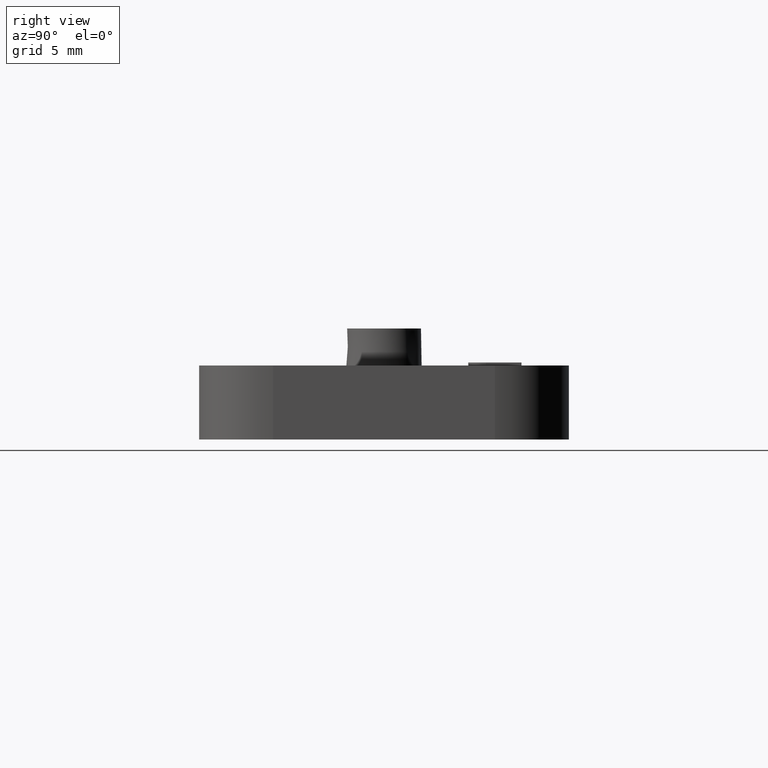
[diagram: clean part render]
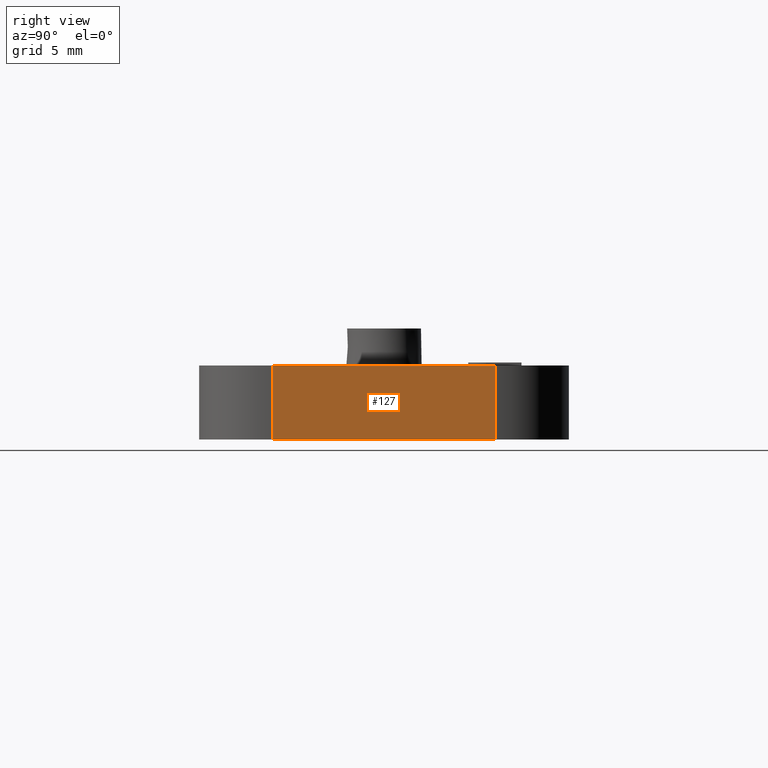
[diagram: same view with one face highlighted and labeled with its STEP entity id]
A machine part, right view. The second image highlights one B-rep face of the part: STEP entity #127.
In plain terms, the highlighted planar face has unit normal (1, -0, 0).
Its self-contained STEP definition (entity closure, byte-faithful):
#127 = ADVANCED_FACE( '', ( #452 ), #453, .T. );
#452 = FACE_OUTER_BOUND( '', #962, .T. );
#453 = PLANE( '', #963 );
#962 = EDGE_LOOP( '', ( #1935, #1936, #1937, #1938 ) );
#963 = AXIS2_PLACEMENT_3D( '', #1939, #1940, #1941 );
#1935 = ORIENTED_EDGE( '', *, *, #3611, .T. );
#1936 = ORIENTED_EDGE( '', *, *, #3275, .F. );
#1937 = ORIENTED_EDGE( '', *, *, #3612, .F. );
#1938 = ORIENTED_EDGE( '', *, *, #3242, .T. );
#1939 = CARTESIAN_POINT( '', ( 20.9999999999999, 10.4999999999999, 2.99999999999999 ) );
#1940 = DIRECTION( '', ( 1.00000000000000, -4.13029399042099E-017, 2.52899213191196E-033 ) );
#1941 = DIRECTION( '', ( 4.13029399042099E-017, 1.00000000000000, -6.12303176911189E-017 ) );
#3242 = EDGE_CURVE( '', #3853, #3851, #3854, .T. );
#3275 = EDGE_CURVE( '', #3917, #3919, #3920, .T. );
#3611 = EDGE_CURVE( '', #3851, #3919, #4560, .T. );
#3612 = EDGE_CURVE( '', #3853, #3917, #4561, .T. );
#3851 = VERTEX_POINT( '', #4852 );
#3853 = VERTEX_POINT( '', #4854 );
#3854 = LINE( '', #4855, #4856 );
#3917 = VERTEX_POINT( '', #4947 );
#3919 = VERTEX_POINT( '', #4949 );
#3920 = LINE( '', #4950, #4951 );
#4560 = LINE( '', #5920, #5921 );
#4561 = LINE( '', #5922, #5923 );
#4852 = CARTESIAN_POINT( '', ( 21.0000000000000, -7.50000000000002, 4.99999999999998 ) );
#4854 = CARTESIAN_POINT( '', ( 21.0000000000000, 7.50000000000001, 4.99999999999998 ) );
#4855 = CARTESIAN_POINT( '', ( 21.0000000000000, -8.36746579142844E-015, 4.99999999999998 ) );
#4856 = VECTOR( '', #6396, 1000.00000000000 );
#4947 = CARTESIAN_POINT( '', ( 21.0000000000000, 7.49999999999999, -2.82148029983123E-014 ) );
#4949 = CARTESIAN_POINT( '', ( 21.0000000000000, -7.50000000000002, -2.72963482329455E-014 ) );
#4950 = CARTESIAN_POINT( '', ( 20.9999999999999, 10.4999999999999, -1.45207061435712E-014 ) );
#4951 = VECTOR( '', #6437, 1000.00000000000 );
#5920 = CARTESIAN_POINT( '', ( 21.0000000000000, -7.50000000000000, 65.4686565762927 ) );
#5921 = VECTOR( '', #6785, 1000.00000000000 );
#5922 = CARTESIAN_POINT( '', ( 21.0000000000000, 7.50000000000001, 65.4686565762927 ) );
#5923 = VECTOR( '', #6786, 1000.00000000000 );
#6396 = DIRECTION( '', ( 2.95286543775261E-032, -1.00000000000000, 6.12303176911189E-017 ) );
#6437 = DIRECTION( '', ( -4.13029399042099E-017, -1.00000000000000, 6.12303176911189E-017 ) );
#6785 = DIRECTION( '', ( 1.60751816480226E-016, -1.81794180051289E-016, -1.00000000000000 ) );
#6786 = DIRECTION( '', ( 1.60751816480226E-016, -1.81794180051289E-016, -1.00000000000000 ) );